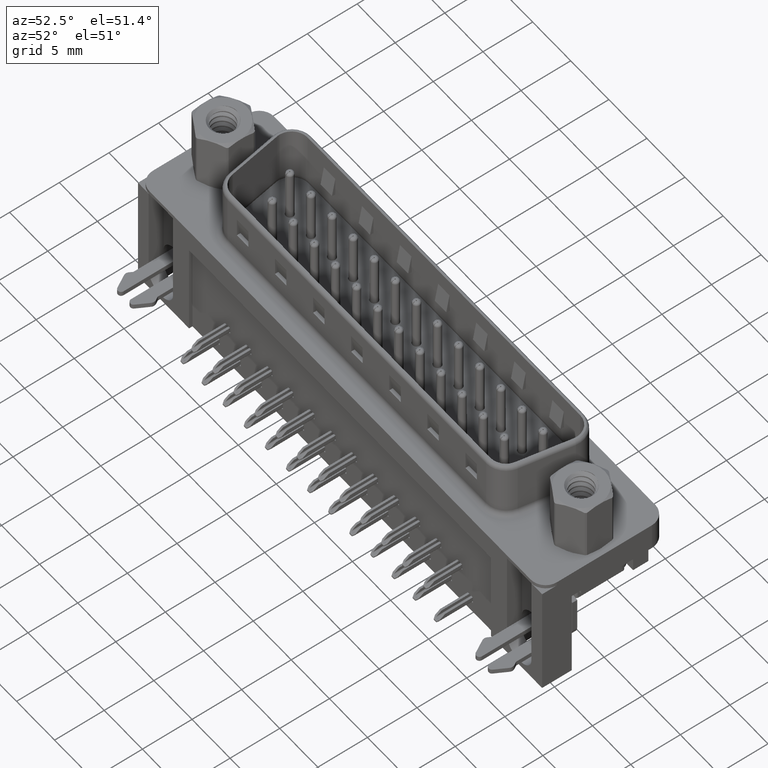
[diagram: clean part render]
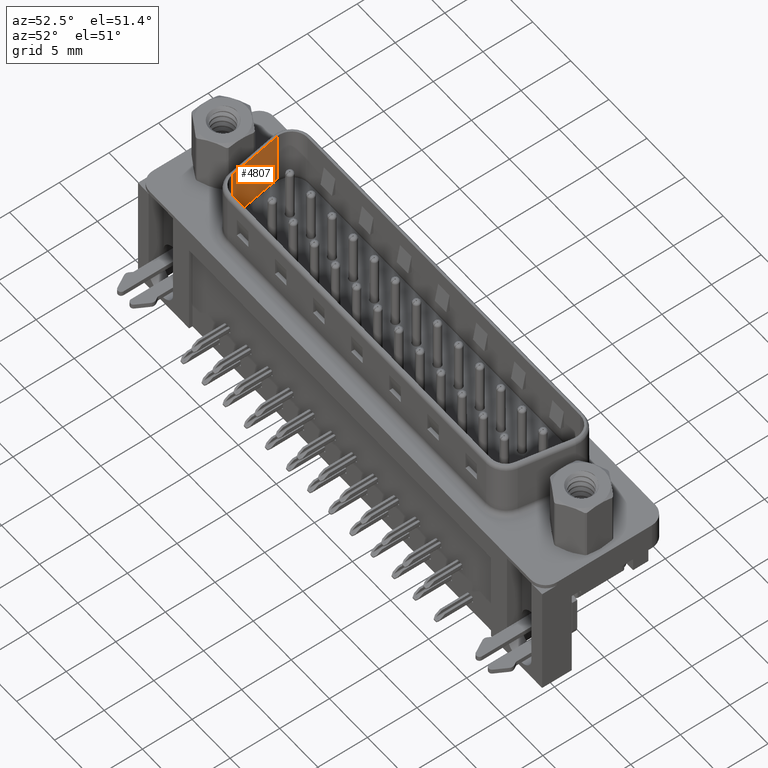
[diagram: same view with one face highlighted and labeled with its STEP entity id]
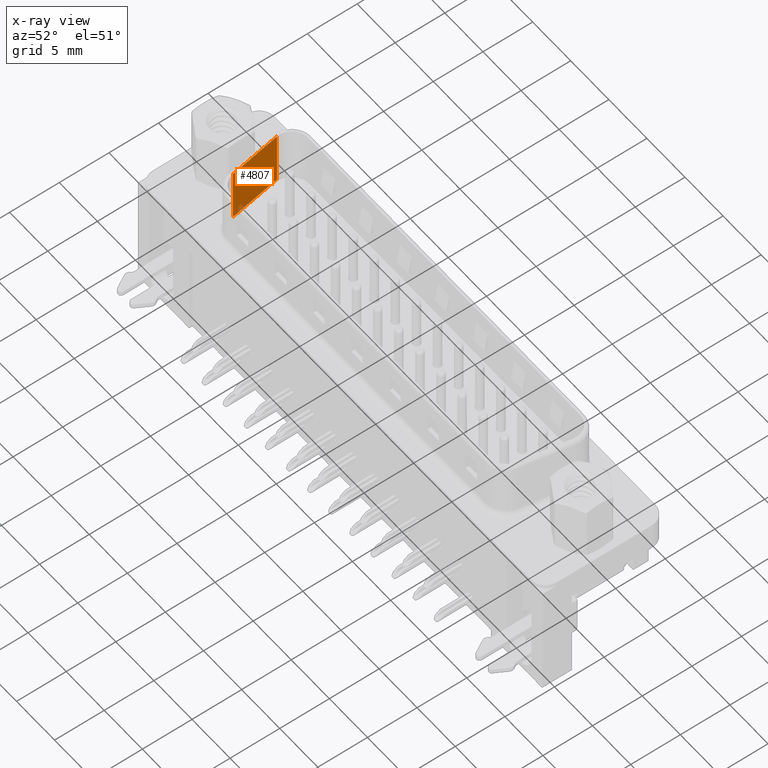
[diagram: x-ray of the same camera — body ghosted, the highlighted face saturated]
A machine part, auxiliary view. The second image highlights one B-rep face of the part: STEP entity #4807.
The next image is the same camera in x-ray: the body ghosted, the highlighted face saturated — about 2% of this face is hidden behind the body in this view.
In plain terms, the highlighted planar face has unit normal (0.9848, 0.1736, 0).
Its self-contained STEP definition (entity closure, byte-faithful):
#617 = VERTEX_POINT ( 'NONE', #14633 ) ;
#2208 = CARTESIAN_POINT ( 'NONE',  ( 4.974154815636110200, -2.857837084267082600, 6.400000000000000400 ) ) ;
#2494 = DIRECTION ( 'NONE',  ( -0.1736481776669231700, 0.9848077530122093500, 0.0000000000000000000 ) ) ;
#2779 = LINE ( 'NONE', #2208, #7527 ) ;
#3344 = LINE ( 'NONE', #24447, #16634 ) ;
#4144 = VERTEX_POINT ( 'NONE', #17162 ) ;
#4807 = ADVANCED_FACE ( 'NONE', ( #12366 ), #18361, .T. ) ;
#7051 = DIRECTION ( 'NONE',  ( -0.0000000000000000000, -0.0000000000000000000, -1.000000000000000000 ) ) ;
#7161 = ORIENTED_EDGE ( 'NONE', *, *, #9039, .F. ) ;
#7354 = CARTESIAN_POINT ( 'NONE',  ( 4.064307595180470600, 2.302162915732916200, 0.8999999999999998000 ) ) ;
#7527 = VECTOR ( 'NONE', #2494, 1000.000000000000000 ) ;
#9039 = EDGE_CURVE ( 'NONE', #14255, #13292, #25758, .T. ) ;
#11764 = DIRECTION ( 'NONE',  ( -0.1736481776669231700, 0.9848077530122093500, 0.0000000000000000000 ) ) ;
#12013 = EDGE_CURVE ( 'NONE', #617, #14255, #2779, .T. ) ;
#12236 = ORIENTED_EDGE ( 'NONE', *, *, #21879, .F. ) ;
#12366 = FACE_OUTER_BOUND ( 'NONE', #13588, .T. ) ;
#12543 = ORIENTED_EDGE ( 'NONE', *, *, #25920, .T. ) ;
#13292 = VERTEX_POINT ( 'NONE', #7354 ) ;
#13582 = VECTOR ( 'NONE', #7051, 1000.000000000000000 ) ;
#13588 = EDGE_LOOP ( 'NONE', ( #13602, #12543, #12236, #7161 ) ) ;
#13602 = ORIENTED_EDGE ( 'NONE', *, *, #12013, .F. ) ;
#14240 = VECTOR ( 'NONE', #21166, 1000.000000000000000 ) ;
#14255 = VERTEX_POINT ( 'NONE', #20832 ) ;
#14633 = CARTESIAN_POINT ( 'NONE',  ( 4.974154815636110200, -2.857837084267082200, 6.400000000000000400 ) ) ;
#16634 = VECTOR ( 'NONE', #17852, 1000.000000000000000 ) ;
#17162 = CARTESIAN_POINT ( 'NONE',  ( 4.974154815636110200, -2.857837084267082600, 0.8999999999999998000 ) ) ;
#17852 = DIRECTION ( 'NONE',  ( 0.1736481776669231700, -0.9848077530122093500, -0.0000000000000000000 ) ) ;
#18361 = PLANE ( 'NONE',  #21172 ) ;
#20563 = CARTESIAN_POINT ( 'NONE',  ( 4.974154815636110200, -2.857837084267082600, 6.500000000000000000 ) ) ;
#20832 = CARTESIAN_POINT ( 'NONE',  ( 4.064307595180470600, 2.302162915732916200, 6.400000000000000400 ) ) ;
#21166 = DIRECTION ( 'NONE',  ( -0.0000000000000000000, -0.0000000000000000000, -1.000000000000000000 ) ) ;
#21172 = AXIS2_PLACEMENT_3D ( 'NONE', #20563, #24786, #11764 ) ;
#21879 = EDGE_CURVE ( 'NONE', #13292, #4144, #3344, .T. ) ;
#21919 = CARTESIAN_POINT ( 'NONE',  ( 4.974154815636110200, -2.857837084267082600, 6.500000000000000000 ) ) ;
#22125 = LINE ( 'NONE', #21919, #13582 ) ;
#23317 = CARTESIAN_POINT ( 'NONE',  ( 4.064307595180470600, 2.302162915732916200, 6.500000000000000000 ) ) ;
#24447 = CARTESIAN_POINT ( 'NONE',  ( 4.974154815636110200, -2.857837084267082600, 0.8999999999999998000 ) ) ;
#24786 = DIRECTION ( 'NONE',  ( 0.9848077530122093500, 0.1736481776669231700, -0.0000000000000000000 ) ) ;
#25758 = LINE ( 'NONE', #23317, #14240 ) ;
#25920 = EDGE_CURVE ( 'NONE', #617, #4144, #22125, .T. ) ;